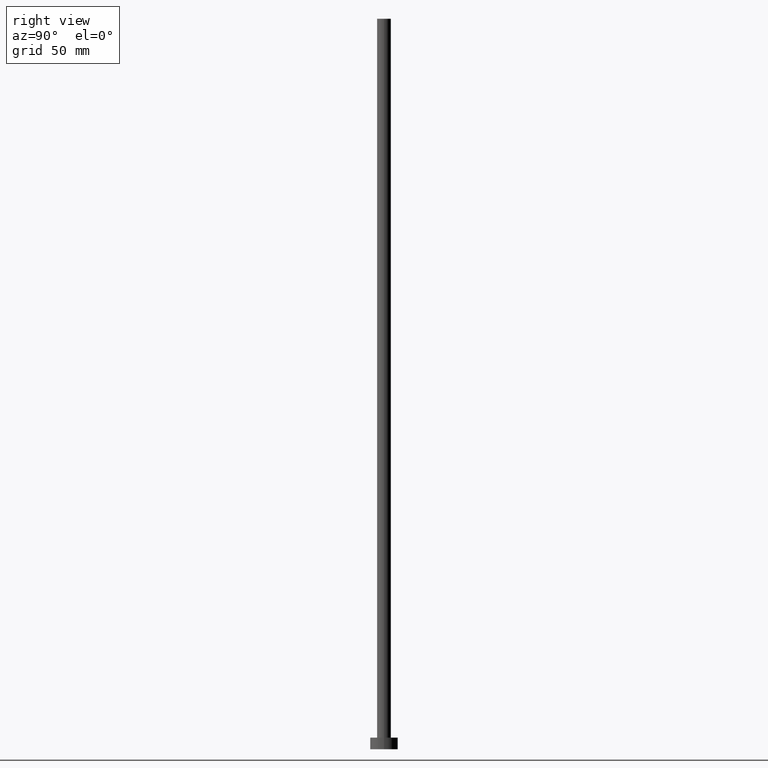
[diagram: clean part render]
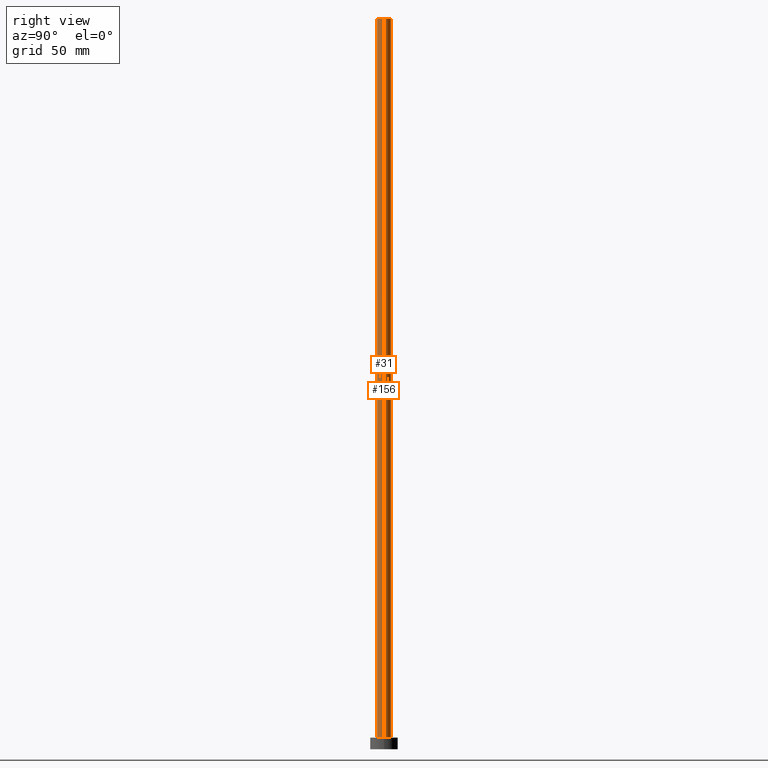
[diagram: same view with one multi-face feature highlighted, each face labeled with its STEP entity id]
A machine part, right view. The highlighted faces form ONE feature: a constant-radius fillet chain: 2 tangent blend faces with common blend radius 3 mm. The faces share edges in the B-rep.
Their STEP definitions:
[1] entity #31 (Cylinder):
#7 = CARTESIAN_POINT ( 'NONE',  ( -3.000000000000000444, 0.000000000000000000, 5.000000000000000000 ) ) ;
#8 = EDGE_CURVE ( 'NONE', #16, #132, #191, .T. ) ;
#16 = VERTEX_POINT ( 'NONE', #87 ) ;
#28 = DIRECTION ( 'NONE',  ( 0.000000000000000000, 0.000000000000000000, 1.000000000000000000 ) ) ;
#30 = CARTESIAN_POINT ( 'NONE',  ( 3.000000000000000444, 3.673940397442060361E-16, 5.000000000000000000 ) ) ;
#31 = ADVANCED_FACE ( 'NONE', ( #155 ), #117, .T. ) ;
#32 = VECTOR ( 'NONE', #45, 1000.000000000000000 ) ;
#45 = DIRECTION ( 'NONE',  ( -0.000000000000000000, -0.000000000000000000, -1.000000000000000000 ) ) ;
#47 = DIRECTION ( 'NONE',  ( -1.000000000000000000, 0.000000000000000000, 0.000000000000000000 ) ) ;
#55 = VERTEX_POINT ( 'NONE', #30 ) ;
#71 = CIRCLE ( 'NONE', #221, 3.000000000000000444 ) ;
#83 = EDGE_CURVE ( 'NONE', #110, #55, #179, .T. ) ;
#87 = CARTESIAN_POINT ( 'NONE',  ( -3.000000000000000444, 0.000000000000000000, 315.0000000000000000 ) ) ;
#92 = CARTESIAN_POINT ( 'NONE',  ( 0.000000000000000000, 0.000000000000000000, 315.0000000000000000 ) ) ;
#94 = EDGE_CURVE ( 'NONE', #132, #55, #71, .T. ) ;
#95 = CARTESIAN_POINT ( 'NONE',  ( -3.000000000000000444, 0.000000000000000000, 315.0000000000000000 ) ) ;
#104 = AXIS2_PLACEMENT_3D ( 'NONE', #144, #252, #220 ) ;
#110 = VERTEX_POINT ( 'NONE', #161 ) ;
#117 = CYLINDRICAL_SURFACE ( 'NONE', #145, 3.000000000000000444 ) ;
#121 = DIRECTION ( 'NONE',  ( -0.000000000000000000, -0.000000000000000000, -1.000000000000000000 ) ) ;
#132 = VERTEX_POINT ( 'NONE', #7 ) ;
#136 = ORIENTED_EDGE ( 'NONE', *, *, #83, .F. ) ;
#144 = CARTESIAN_POINT ( 'NONE',  ( 0.000000000000000000, 0.000000000000000000, 315.0000000000000000 ) ) ;
#145 = AXIS2_PLACEMENT_3D ( 'NONE', #92, #227, #47 ) ;
#150 = EDGE_CURVE ( 'NONE', #16, #110, #151, .T. ) ;
#151 = CIRCLE ( 'NONE', #104, 3.000000000000000444 ) ;
#155 = FACE_OUTER_BOUND ( 'NONE', #167, .T. ) ;
#161 = CARTESIAN_POINT ( 'NONE',  ( 3.000000000000000444, 3.673940397442060361E-16, 315.0000000000000000 ) ) ;
#167 = EDGE_LOOP ( 'NONE', ( #136, #254, #242, #169 ) ) ;
#169 = ORIENTED_EDGE ( 'NONE', *, *, #94, .T. ) ;
#179 = LINE ( 'NONE', #248, #192 ) ;
#191 = LINE ( 'NONE', #95, #32 ) ;
#192 = VECTOR ( 'NONE', #121, 1000.000000000000000 ) ;
#199 = DIRECTION ( 'NONE',  ( 1.000000000000000000, 0.000000000000000000, 0.000000000000000000 ) ) ;
#219 = CARTESIAN_POINT ( 'NONE',  ( 0.000000000000000000, 0.000000000000000000, 5.000000000000000000 ) ) ;
#220 = DIRECTION ( 'NONE',  ( 1.000000000000000000, 0.000000000000000000, 0.000000000000000000 ) ) ;
#221 = AXIS2_PLACEMENT_3D ( 'NONE', #219, #28, #199 ) ;
#227 = DIRECTION ( 'NONE',  ( -0.000000000000000000, -0.000000000000000000, -1.000000000000000000 ) ) ;
#242 = ORIENTED_EDGE ( 'NONE', *, *, #8, .T. ) ;
#248 = CARTESIAN_POINT ( 'NONE',  ( 3.000000000000000444, 3.673940397442060361E-16, 315.0000000000000000 ) ) ;
#252 = DIRECTION ( 'NONE',  ( 0.000000000000000000, 0.000000000000000000, 1.000000000000000000 ) ) ;
#254 = ORIENTED_EDGE ( 'NONE', *, *, #150, .F. ) ;
[2] entity #156 (Cylinder):
#1 = ORIENTED_EDGE ( 'NONE', *, *, #44, .T. ) ;
#7 = CARTESIAN_POINT ( 'NONE',  ( -3.000000000000000444, 0.000000000000000000, 5.000000000000000000 ) ) ;
#8 = EDGE_CURVE ( 'NONE', #16, #132, #191, .T. ) ;
#11 = FACE_OUTER_BOUND ( 'NONE', #24, .T. ) ;
#16 = VERTEX_POINT ( 'NONE', #87 ) ;
#20 = ORIENTED_EDGE ( 'NONE', *, *, #83, .T. ) ;
#24 = EDGE_LOOP ( 'NONE', ( #78, #20, #1, #208 ) ) ;
#30 = CARTESIAN_POINT ( 'NONE',  ( 3.000000000000000444, 3.673940397442060361E-16, 5.000000000000000000 ) ) ;
#32 = VECTOR ( 'NONE', #45, 1000.000000000000000 ) ;
#33 = CARTESIAN_POINT ( 'NONE',  ( 0.000000000000000000, 0.000000000000000000, 315.0000000000000000 ) ) ;
#36 = DIRECTION ( 'NONE',  ( 0.000000000000000000, 0.000000000000000000, 1.000000000000000000 ) ) ;
#37 = CIRCLE ( 'NONE', #195, 3.000000000000000444 ) ;
#44 = EDGE_CURVE ( 'NONE', #55, #132, #37, .T. ) ;
#45 = DIRECTION ( 'NONE',  ( -0.000000000000000000, -0.000000000000000000, -1.000000000000000000 ) ) ;
#51 = CARTESIAN_POINT ( 'NONE',  ( 0.000000000000000000, 0.000000000000000000, 5.000000000000000000 ) ) ;
#52 = CARTESIAN_POINT ( 'NONE',  ( 0.000000000000000000, 0.000000000000000000, 315.0000000000000000 ) ) ;
#55 = VERTEX_POINT ( 'NONE', #30 ) ;
#63 = AXIS2_PLACEMENT_3D ( 'NONE', #52, #36, #181 ) ;
#78 = ORIENTED_EDGE ( 'NONE', *, *, #235, .F. ) ;
#83 = EDGE_CURVE ( 'NONE', #110, #55, #179, .T. ) ;
#87 = CARTESIAN_POINT ( 'NONE',  ( -3.000000000000000444, 0.000000000000000000, 315.0000000000000000 ) ) ;
#95 = CARTESIAN_POINT ( 'NONE',  ( -3.000000000000000444, 0.000000000000000000, 315.0000000000000000 ) ) ;
#98 = DIRECTION ( 'NONE',  ( -0.000000000000000000, -0.000000000000000000, -1.000000000000000000 ) ) ;
#102 = CYLINDRICAL_SURFACE ( 'NONE', #119, 3.000000000000000444 ) ;
#110 = VERTEX_POINT ( 'NONE', #161 ) ;
#119 = AXIS2_PLACEMENT_3D ( 'NONE', #33, #98, #250 ) ;
#121 = DIRECTION ( 'NONE',  ( -0.000000000000000000, -0.000000000000000000, -1.000000000000000000 ) ) ;
#132 = VERTEX_POINT ( 'NONE', #7 ) ;
#156 = ADVANCED_FACE ( 'NONE', ( #11 ), #102, .T. ) ;
#161 = CARTESIAN_POINT ( 'NONE',  ( 3.000000000000000444, 3.673940397442060361E-16, 315.0000000000000000 ) ) ;
#179 = LINE ( 'NONE', #248, #192 ) ;
#181 = DIRECTION ( 'NONE',  ( 1.000000000000000000, 0.000000000000000000, 0.000000000000000000 ) ) ;
#191 = LINE ( 'NONE', #95, #32 ) ;
#192 = VECTOR ( 'NONE', #121, 1000.000000000000000 ) ;
#195 = AXIS2_PLACEMENT_3D ( 'NONE', #51, #231, #215 ) ;
#201 = CIRCLE ( 'NONE', #63, 3.000000000000000444 ) ;
#208 = ORIENTED_EDGE ( 'NONE', *, *, #8, .F. ) ;
#215 = DIRECTION ( 'NONE',  ( 1.000000000000000000, 0.000000000000000000, 0.000000000000000000 ) ) ;
#231 = DIRECTION ( 'NONE',  ( 0.000000000000000000, 0.000000000000000000, 1.000000000000000000 ) ) ;
#235 = EDGE_CURVE ( 'NONE', #110, #16, #201, .T. ) ;
#248 = CARTESIAN_POINT ( 'NONE',  ( 3.000000000000000444, 3.673940397442060361E-16, 315.0000000000000000 ) ) ;
#250 = DIRECTION ( 'NONE',  ( -1.000000000000000000, 0.000000000000000000, 0.000000000000000000 ) ) ;